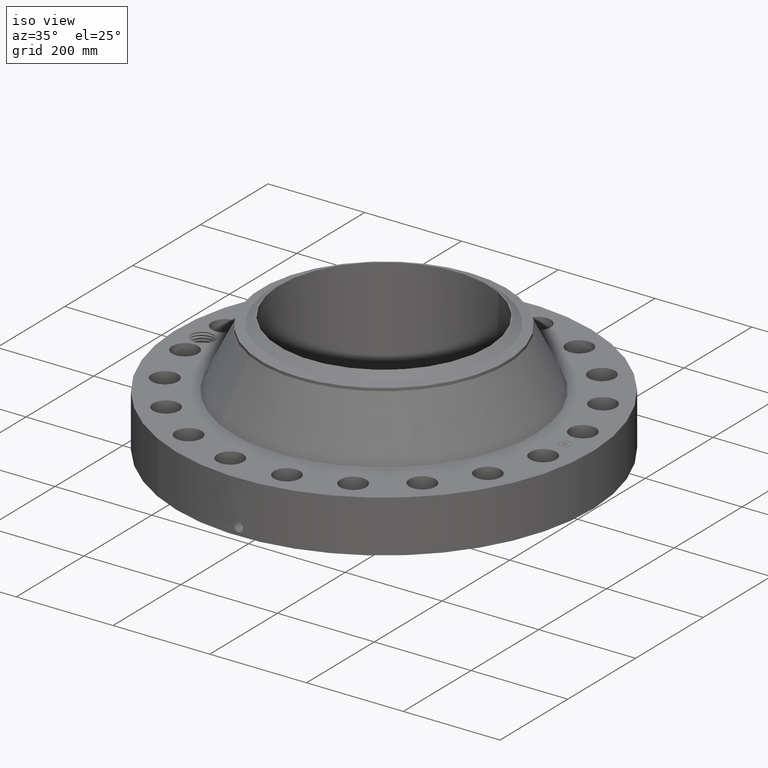
[diagram: clean part render]
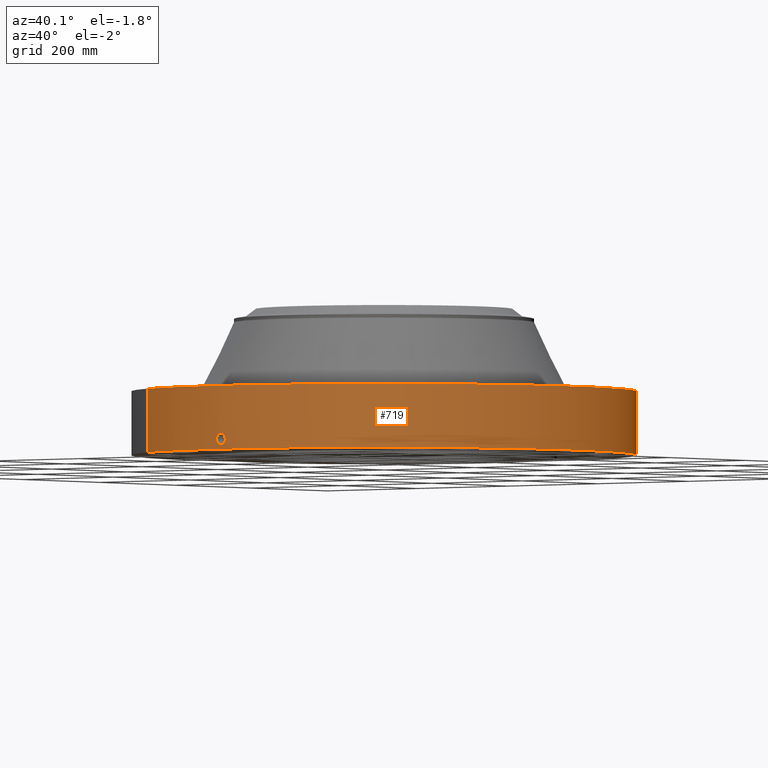
[diagram: tour spotlight — one face highlighted and labeled with its STEP entity id]
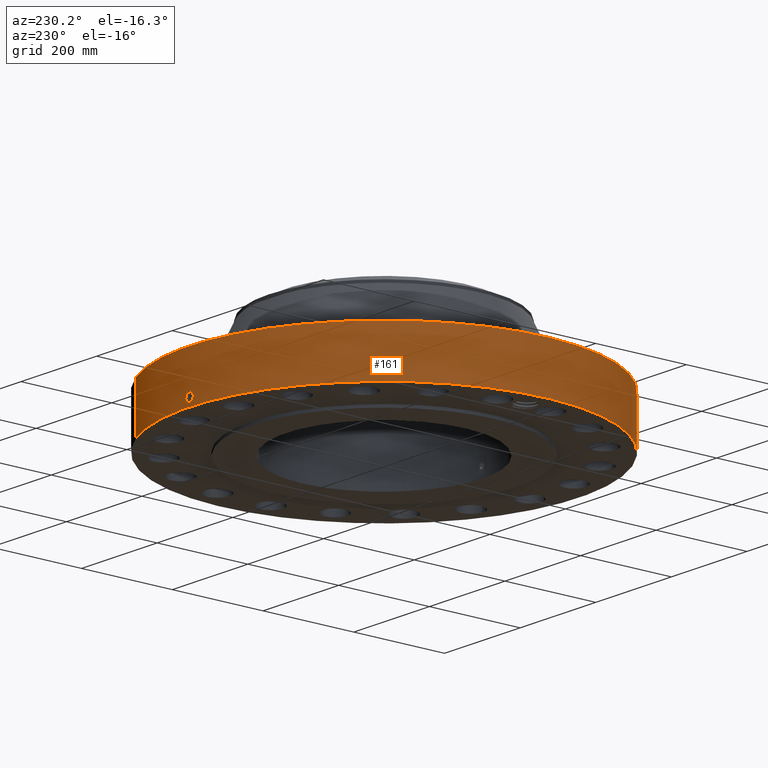
[diagram: tour spotlight — one face highlighted and labeled with its STEP entity id]
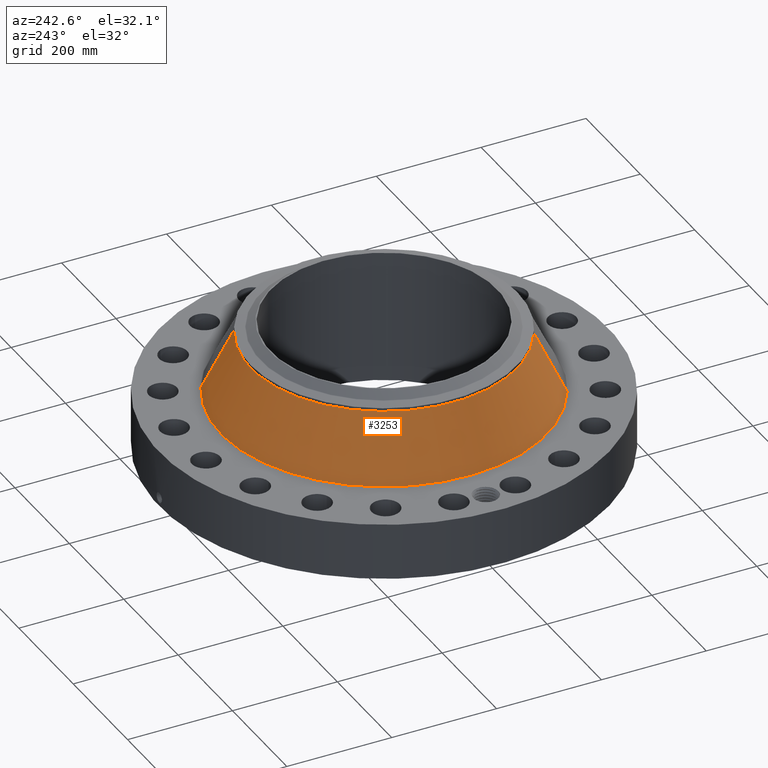
[diagram: tour spotlight — one face highlighted and labeled with its STEP entity id]
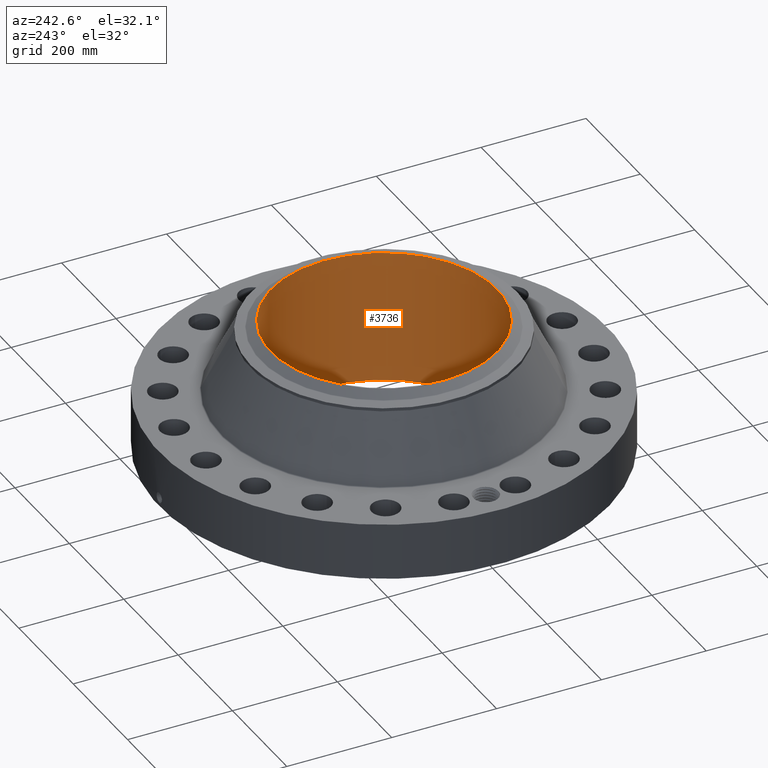
[diagram: tour spotlight — one face highlighted and labeled with its STEP entity id]
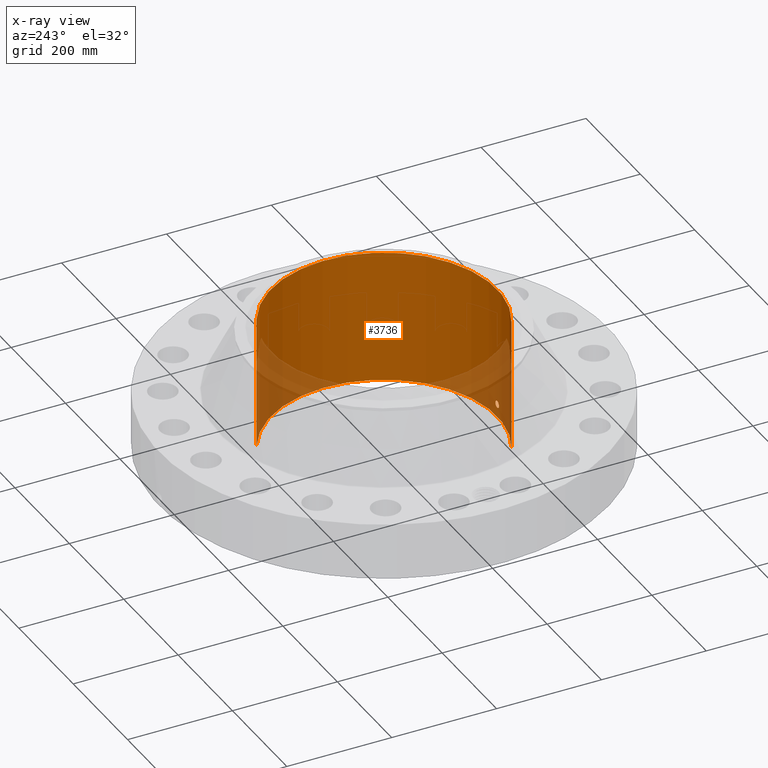
[diagram: x-ray of the same camera — body ghosted, this tour face saturated]
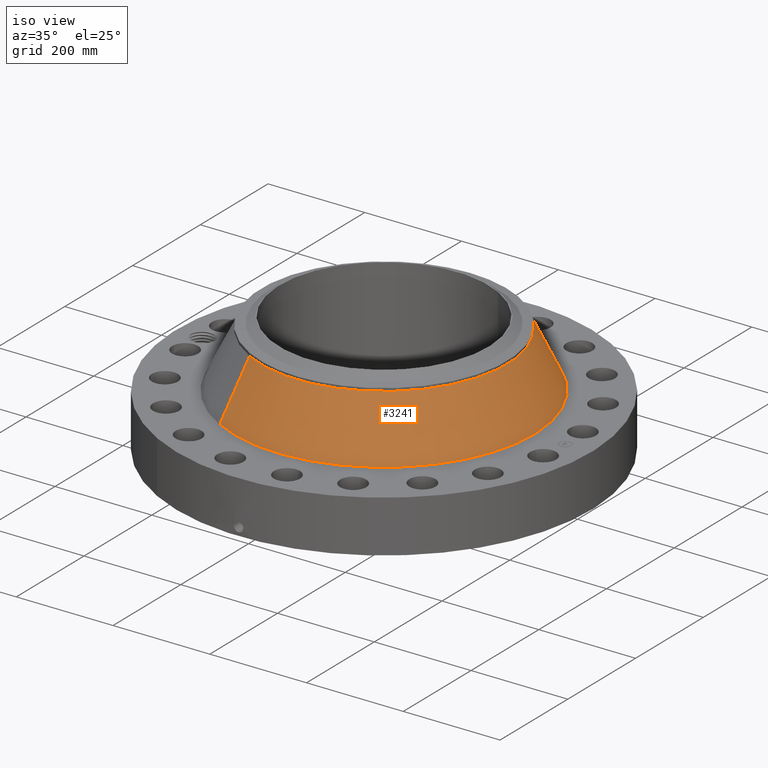
[diagram: tour spotlight — one face highlighted and labeled with its STEP entity id]
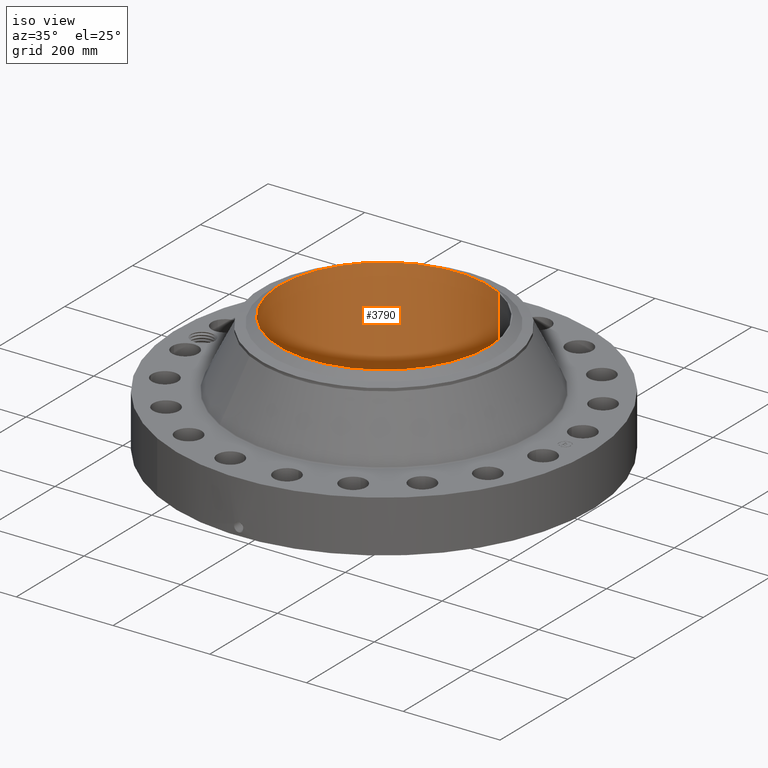
[diagram: tour spotlight — one face highlighted and labeled with its STEP entity id]
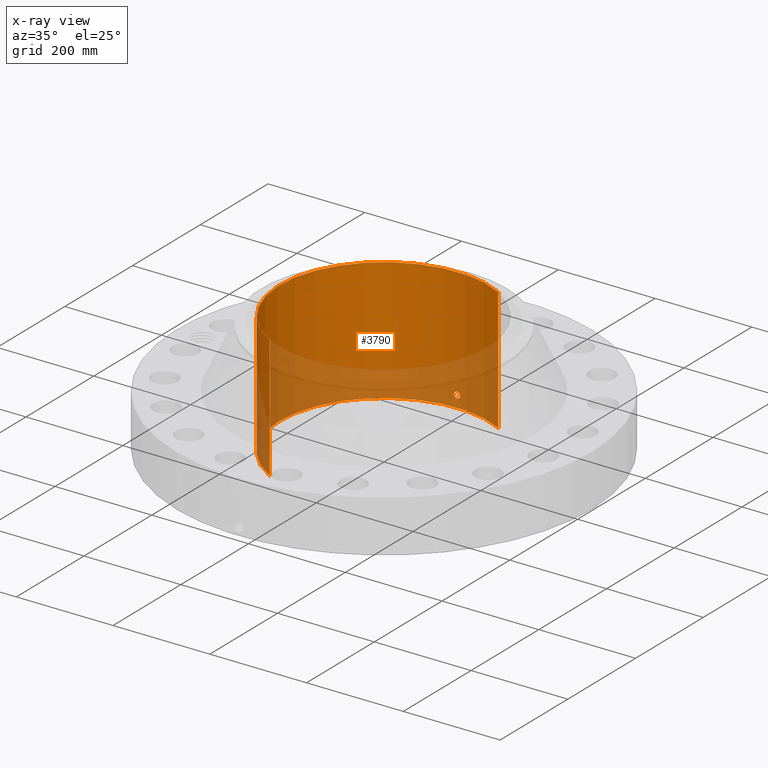
[diagram: x-ray of the same camera — body ghosted, this tour face saturated]
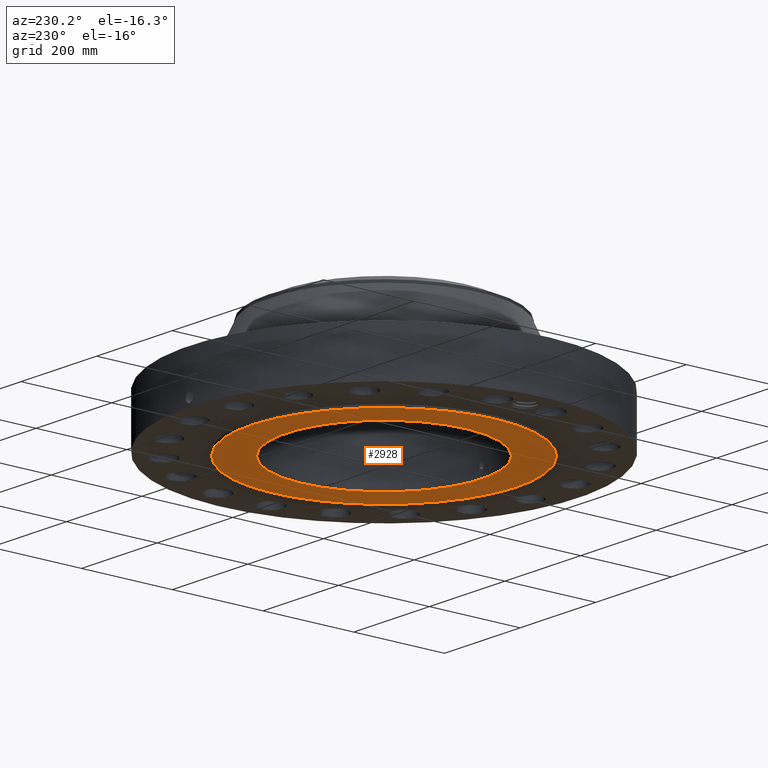
[diagram: tour spotlight — one face highlighted and labeled with its STEP entity id]
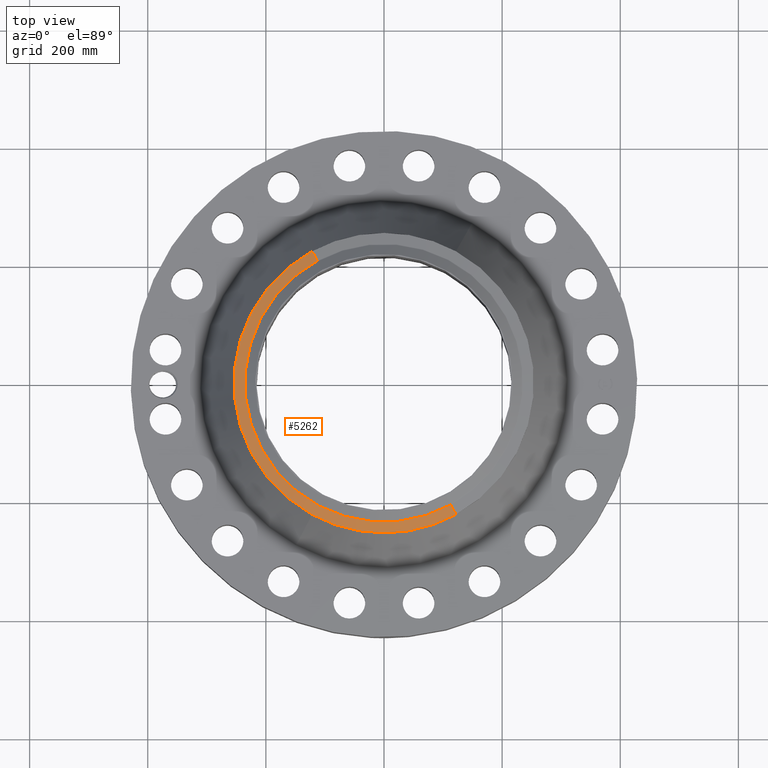
[diagram: tour spotlight — one face highlighted and labeled with its STEP entity id]
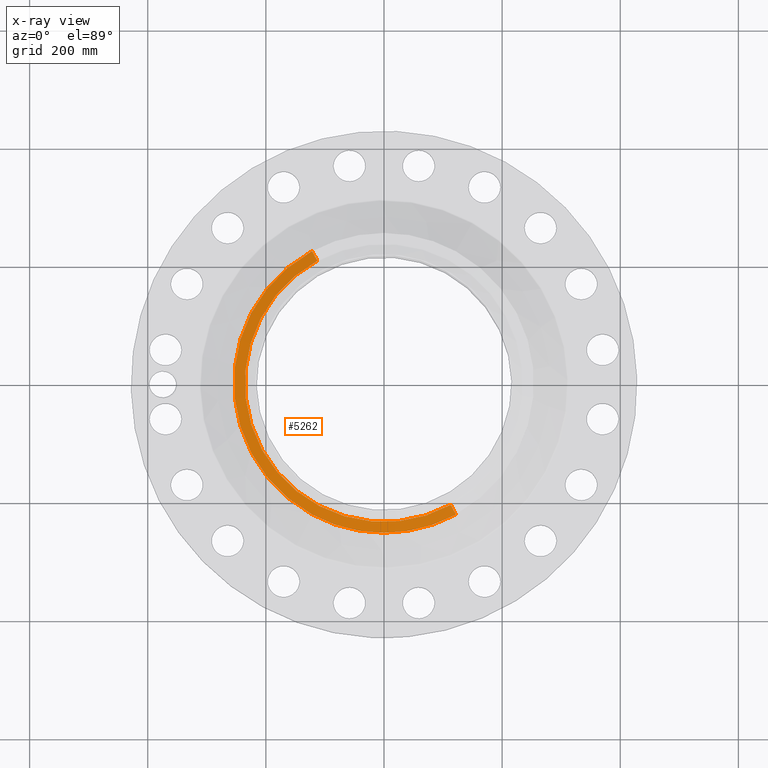
[diagram: x-ray of the same camera — body ghosted, this tour face saturated]
A machine part: a face-by-face anatomy tour. The part has 822 B-rep faces; the first image is the clean iso view, then the 8 largest visible faces are spotlighted one at a time (largest first), each with its STEP entity span.

Face 1 — auxiliary view, entity #719. In plain terms, the highlighted cylindrical surface (partial cylindrical patch) has radius 428.625 mm, axis along (0, 0, -1).
Definition (entity closure, byte-faithful):
#38=AXIS2_PLACEMENT_3D('Cylinder Axis2P3D',#35,#36,#37) ;
#169=AXIS2_PLACEMENT_3D('Circle Axis2P3D',#167,#168,$) ;
#623=AXIS2_PLACEMENT_3D('Circle Axis2P3D',#621,#622,$) ;
#35=CARTESIAN_POINT('Axis2P3D Location',(0.,0.,5.00000000002)) ;
#44=CARTESIAN_POINT('Vertex',(-8.09030596398,-14.809205732,0.250000000001)) ;
#46=CARTESIAN_POINT('Vertex',(8.09030596398,14.809205732,0.250000000001)) ;
#49=CARTESIAN_POINT('Line Origine',(-8.09030596398,-14.809205732,2.37500000001)) ;
#53=CARTESIAN_POINT('Vertex',(-8.09030596398,-14.809205732,4.50000000002)) ;
#60=CARTESIAN_POINT('Vertex',(8.09030596398,14.809205732,4.50000000002)) ;
#63=CARTESIAN_POINT('Line Origine',(8.09030596398,14.809205732,2.37500000001)) ;
#167=CARTESIAN_POINT('Axis2P3D Location',(0.,0.,0.250000000001)) ;
#621=CARTESIAN_POINT('Axis2P3D Location',(0.,0.,4.50000000002)) ;
#633=CARTESIAN_POINT('Control Point',(0.000715966344734,-16.8749999849,1.29411846151)) ;
#634=CARTESIAN_POINT('Control Point',(0.0188587449809,-16.8749992151,1.29408182617)) ;
#635=CARTESIAN_POINT('Control Point',(0.0369983738358,-16.8749689585,1.29264716763)) ;
#636=CARTESIAN_POINT('Control Point',(0.05492114816,-16.874910627,1.28983155179)) ;
#637=CARTESIAN_POINT('Vertex',(0.000715647544347,-16.8749999849,1.29411851071)) ;
#639=CARTESIAN_POINT('Vertex',(0.0549124867546,-16.8749109068,1.28983293024)) ;
#643=CARTESIAN_POINT('Control Point',(0.0549123924265,-16.8749106555,1.28983238615)) ;
#644=CARTESIAN_POINT('Control Point',(0.0954921253259,-16.8747786056,1.28546586304)) ;
#645=CARTESIAN_POINT('Control Point',(0.13544862936,-16.8744965787,1.27372463291)) ;
#646=CARTESIAN_POINT('Control Point',(0.172272160945,-16.874120638,1.25537261567)) ;
#647=CARTESIAN_POINT('Vertex',(0.172272160945,-16.874120638,1.25537261567)) ;
#651=CARTESIAN_POINT('Control Point',(0.0311176967246,-16.8749713093,0.531196981948)) ;
#652=CARTESIAN_POINT('Control Point',(0.0716971627791,-16.8748964802,0.536329675343)) ;
#653=CARTESIAN_POINT('Control Point',(0.111483887484,-16.874701135,0.54671774293)) ;
#654=CARTESIAN_POINT('Control Point',(0.149542289915,-16.8743962607,0.562204334612)) ;
#655=CARTESIAN_POINT('Control Point',(0.239358933903,-16.8734348165,0.613172299083)) ;
#656=CARTESIAN_POINT('Control Point',(0.308457455016,-16.8722463849,0.690007880862)) ;
#657=CARTESIAN_POINT('Control Point',(0.340329822593,-16.8715879855,0.743761261478)) ;
#658=CARTESIAN_POINT('Control Point',(0.374944138443,-16.8708389442,0.84107339288)) ;
#659=CARTESIAN_POINT('Control Point',(0.377318743414,-16.8707797936,0.94236708006)) ;
#660=CARTESIAN_POINT('Control Point',(0.372953924711,-16.870879792,0.98292589785)) ;
#661=CARTESIAN_POINT('Control Point',(0.350404708112,-16.871382695,1.07569920784)) ;
#662=CARTESIAN_POINT('Control Point',(0.30066942533,-16.8723616565,1.1572585094)) ;
#663=CARTESIAN_POINT('Control Point',(0.263812673078,-16.8730156963,1.19834070166)) ;
#664=CARTESIAN_POINT('Control Point',(0.220228293546,-16.8736310417,1.2314723578)) ;
#665=CARTESIAN_POINT('Control Point',(0.172272160945,-16.874120638,1.25537261567)) ;
#666=CARTESIAN_POINT('Vertex',(0.0311176967246,-16.8749713093,0.531196981948)) ;
#670=CARTESIAN_POINT('Control Point',(0.0311176967246,-16.8749713093,0.531196981948)) ;
#671=CARTESIAN_POINT('Control Point',(0.0207404090337,-16.8749904452,0.530875685859)) ;
#672=CARTESIAN_POINT('Control Point',(0.0103551827877,-16.8750000017,0.530935093628)) ;
#673=CARTESIAN_POINT('Control Point',(-2.72878355396E-006,-16.8750000001,0.531374667806)) ;
#674=CARTESIAN_POINT('Vertex',(-2.72878354464E-006,-16.8750000001,0.531374667806)) ;
#678=CARTESIAN_POINT('Control Point',(-0.19254051346,-16.8739015392,0.587568175017)) ;
#679=CARTESIAN_POINT('Control Point',(-0.148973082246,-16.8743986675,0.562131731085)) ;
#680=CARTESIAN_POINT('Control Point',(-0.101110473954,-16.8747954933,0.543811579036)) ;
#681=CARTESIAN_POINT('Control Point',(-0.0508033336652,-16.8749999919,0.533530568522)) ;
#682=CARTESIAN_POINT('Control Point',(-2.72878353899E-006,-16.8750000001,0.531374667806)) ;
#683=CARTESIAN_POINT('Vertex',(-0.19254051346,-16.8739015392,0.587568175017)) ;
#687=CARTESIAN_POINT('Control Point',(-0.19254051346,-16.8739015392,0.587568175017)) ;
#688=CARTESIAN_POINT('Control Point',(-0.249309488484,-16.8732537739,0.620712216513)) ;
#689=CARTESIAN_POINT('Control Point',(-0.299262722811,-16.8724450136,0.665183203547)) ;
#690=CARTESIAN_POINT('Control Point',(-0.339248745105,-16.8716253423,0.719381497617)) ;
#691=CARTESIAN_POINT('Control Point',(-0.383251893684,-16.8706561064,0.817654652847)) ;
#692=CARTESIAN_POINT('Control Point',(-0.391654931475,-16.8704531723,0.922932639443)) ;
#693=CARTESIAN_POINT('Control Point',(-0.389478215844,-16.8705050932,0.963131365176)) ;
#694=CARTESIAN_POINT('Control Point',(-0.369875477447,-16.8709644816,1.06613732671)) ;
#695=CARTESIAN_POINT('Control Point',(-0.316342964938,-16.8720886068,1.15688810358)) ;
#696=CARTESIAN_POINT('Control Point',(-0.271808790895,-16.8729258459,1.20451035201)) ;
#697=CARTESIAN_POINT('Control Point',(-0.190945061607,-16.8740756541,1.2605704716)) ;
#698=CARTESIAN_POINT('Control Point',(-0.0989266654643,-16.8747569291,1.28784304808)) ;
#699=CARTESIAN_POINT('Control Point',(-0.0660321748011,-16.8749199747,1.29367514867)) ;
#700=CARTESIAN_POINT('Control Point',(-0.032863472461,-16.8750000504,1.29576551169)) ;
#701=CARTESIAN_POINT('Control Point',(2.5857935553E-005,-16.875,1.2941529843)) ;
#702=CARTESIAN_POINT('Vertex',(2.5857935547E-005,-16.875,1.2941529843)) ;
#706=CARTESIAN_POINT('Control Point',(0.000715647534811,-16.8749999849,1.29411851069)) ;
#707=CARTESIAN_POINT('Control Point',(0.000370777338324,-16.8749999995,1.29413607331)) ;
#708=CARTESIAN_POINT('Control Point',(2.58579404891E-005,-16.875,1.29415298429)) ;
#36=DIRECTION('Axis2P3D Direction',(0.,0.,-0.0393700787402)) ;
#37=DIRECTION('Axis2P3D XDirection',(0.0188750212049,0.0345504945626,0.)) ;
#50=DIRECTION('Vector Direction',(0.,0.,-0.0393700787402)) ;
#64=DIRECTION('Vector Direction',(0.,0.,-0.0393700787402)) ;
#168=DIRECTION('Axis2P3D Direction',(0.,0.,-0.0393700787402)) ;
#622=DIRECTION('Axis2P3D Direction',(0.,0.,-0.0393700787402)) ;
#51=VECTOR('Line Direction',#50,0.0393700787402) ;
#65=VECTOR('Line Direction',#64,0.0393700787402) ;
#627=ORIENTED_EDGE('',*,*,#171,.F.) ;
#628=ORIENTED_EDGE('',*,*,#67,.T.) ;
#629=ORIENTED_EDGE('',*,*,#625,.T.) ;
#630=ORIENTED_EDGE('',*,*,#55,.F.) ;
#711=ORIENTED_EDGE('',*,*,#641,.T.) ;
#712=ORIENTED_EDGE('',*,*,#649,.T.) ;
#713=ORIENTED_EDGE('',*,*,#668,.F.) ;
#714=ORIENTED_EDGE('',*,*,#676,.T.) ;
#715=ORIENTED_EDGE('',*,*,#685,.F.) ;
#716=ORIENTED_EDGE('',*,*,#704,.T.) ;
#717=ORIENTED_EDGE('',*,*,#709,.F.) ;
#718=FACE_BOUND('',#710,.T.) ;
#719=ADVANCED_FACE('PartBody',(#631,#718),#39,.T.) ;
#632=B_SPLINE_CURVE_WITH_KNOTS('',3,(#633,#634,#635,#636),.UNSPECIFIED.,.F.,.U.,(4,4),(34.6167109194,36.6294797197),.UNSPECIFIED.) ;
#642=B_SPLINE_CURVE_WITH_KNOTS('',3,(#643,#644,#645,#646),.UNSPECIFIED.,.F.,.U.,(4,4),(0.,4.58603305915),.UNSPECIFIED.) ;
#650=B_SPLINE_CURVE_WITH_KNOTS('',5,(#651,#652,#653,#654,#655,#656,#657,#658,#659,#660,#661,#662,#663,#664,#665),.UNSPECIFIED.,.F.,.U.,(6,3,3,3,6),(0.,7.10840571919,17.9965871419,25.3424692093,35.2966301383),.UNSPECIFIED.) ;
#669=B_SPLINE_CURVE_WITH_KNOTS('',3,(#670,#671,#672,#673),.UNSPECIFIED.,.F.,.U.,(4,4),(0.,1.08252290649),.UNSPECIFIED.) ;
#677=B_SPLINE_CURVE_WITH_KNOTS('',4,(#678,#679,#680,#681,#682),.UNSPECIFIED.,.F.,.U.,(5,5),(0.,7.07900983512),.UNSPECIFIED.) ;
#686=B_SPLINE_CURVE_WITH_KNOTS('',5,(#687,#688,#689,#690,#691,#692,#693,#694,#695,#696,#697,#698,#699,#700,#701),.UNSPECIFIED.,.F.,.U.,(6,3,3,3,6),(0.,11.5300613839,18.6226471184,30.1177973124,36.2654958876),.UNSPECIFIED.) ;
#705=B_SPLINE_CURVE_WITH_KNOTS('',2,(#706,#707,#708),.UNSPECIFIED.,.F.,.U.,(3,3),(1.01879612386,1.04458516299),.UNSPECIFIED.) ;
#170=CIRCLE('generated circle',#169,16.8750000001) ;
#624=CIRCLE('generated circle',#623,16.8750000001) ;
#39=CYLINDRICAL_SURFACE('generated cylinder',#38,16.8750000001) ;
#55=EDGE_CURVE('',#45,#54,#52,.F.) ;
#67=EDGE_CURVE('',#47,#61,#66,.F.) ;
#171=EDGE_CURVE('',#47,#45,#170,.T.) ;
#625=EDGE_CURVE('',#61,#54,#624,.T.) ;
#641=EDGE_CURVE('',#638,#640,#632,.T.) ;
#649=EDGE_CURVE('',#640,#648,#642,.T.) ;
#668=EDGE_CURVE('',#667,#648,#650,.T.) ;
#676=EDGE_CURVE('',#667,#675,#669,.T.) ;
#685=EDGE_CURVE('',#684,#675,#677,.T.) ;
#704=EDGE_CURVE('',#684,#703,#686,.T.) ;
#709=EDGE_CURVE('',#638,#703,#705,.T.) ;
#626=EDGE_LOOP('',(#627,#628,#629,#630)) ;
#710=EDGE_LOOP('',(#711,#712,#713,#714,#715,#716,#717)) ;
#631=FACE_OUTER_BOUND('',#626,.T.) ;
#52=LINE('Line',#49,#51) ;
#66=LINE('Line',#63,#65) ;
#45=VERTEX_POINT('',#44) ;
#47=VERTEX_POINT('',#46) ;
#54=VERTEX_POINT('',#53) ;
#61=VERTEX_POINT('',#60) ;
#638=VERTEX_POINT('',#637) ;
#640=VERTEX_POINT('',#639) ;
#648=VERTEX_POINT('',#647) ;
#667=VERTEX_POINT('',#666) ;
#675=VERTEX_POINT('',#674) ;
#684=VERTEX_POINT('',#683) ;
#703=VERTEX_POINT('',#702) ;

Face 2 — auxiliary view, entity #161. In plain terms, the highlighted cylindrical surface (partial cylindrical patch) has radius 428.625 mm, axis along (0, 0, -1).
Definition (entity closure, byte-faithful):
#38=AXIS2_PLACEMENT_3D('Cylinder Axis2P3D',#35,#36,#37) ;
#42=AXIS2_PLACEMENT_3D('Circle Axis2P3D',#40,#41,$) ;
#58=AXIS2_PLACEMENT_3D('Circle Axis2P3D',#56,#57,$) ;
#35=CARTESIAN_POINT('Axis2P3D Location',(0.,0.,5.00000000002)) ;
#40=CARTESIAN_POINT('Axis2P3D Location',(0.,0.,0.250000000001)) ;
#44=CARTESIAN_POINT('Vertex',(-8.09030596398,-14.809205732,0.250000000001)) ;
#46=CARTESIAN_POINT('Vertex',(8.09030596398,14.809205732,0.250000000001)) ;
#49=CARTESIAN_POINT('Line Origine',(-8.09030596398,-14.809205732,2.37500000001)) ;
#53=CARTESIAN_POINT('Vertex',(-8.09030596398,-14.809205732,4.50000000002)) ;
#56=CARTESIAN_POINT('Axis2P3D Location',(0.,0.,4.50000000002)) ;
#60=CARTESIAN_POINT('Vertex',(8.09030596398,14.809205732,4.50000000002)) ;
#63=CARTESIAN_POINT('Line Origine',(8.09030596398,14.809205732,2.37500000001)) ;
#75=CARTESIAN_POINT('Control Point',(-0.000715966344916,16.8749999849,1.29411846151)) ;
#76=CARTESIAN_POINT('Control Point',(-0.0188587449822,16.8749992151,1.29408182617)) ;
#77=CARTESIAN_POINT('Control Point',(-0.0369983738336,16.8749689585,1.29264716763)) ;
#78=CARTESIAN_POINT('Control Point',(-0.0549211481594,16.874910627,1.28983155179)) ;
#79=CARTESIAN_POINT('Vertex',(-0.000715647544343,16.8749999849,1.29411851071)) ;
#81=CARTESIAN_POINT('Vertex',(-0.0549124867546,16.8749109068,1.28983293024)) ;
#85=CARTESIAN_POINT('Control Point',(-0.0549123924265,16.8749106555,1.28983238615)) ;
#86=CARTESIAN_POINT('Control Point',(-0.0954921253296,16.8747786056,1.28546586304)) ;
#87=CARTESIAN_POINT('Control Point',(-0.135448629357,16.8744965787,1.27372463291)) ;
#88=CARTESIAN_POINT('Control Point',(-0.172272160945,16.874120638,1.25537261567)) ;
#89=CARTESIAN_POINT('Vertex',(-0.172272160945,16.874120638,1.25537261567)) ;
#93=CARTESIAN_POINT('Control Point',(-0.0311176967246,16.8749713093,0.531196981948)) ;
#94=CARTESIAN_POINT('Control Point',(-0.0716971628168,16.8748964802,0.536329675348)) ;
#95=CARTESIAN_POINT('Control Point',(-0.111483887558,16.874701135,0.54671774295)) ;
#96=CARTESIAN_POINT('Control Point',(-0.149542289849,16.8743962607,0.562204334575)) ;
#97=CARTESIAN_POINT('Control Point',(-0.239358933803,16.8734348165,0.613172299012)) ;
#98=CARTESIAN_POINT('Control Point',(-0.308457454901,16.8722463849,0.690007880735)) ;
#99=CARTESIAN_POINT('Control Point',(-0.340329822649,16.8715879855,0.743761261637)) ;
#100=CARTESIAN_POINT('Control Point',(-0.374944138481,16.8708389442,0.841073393062)) ;
#101=CARTESIAN_POINT('Control Point',(-0.377318743419,16.8707797936,0.942367080266)) ;
#102=CARTESIAN_POINT('Control Point',(-0.372953924759,16.870879792,0.982925897651)) ;
#103=CARTESIAN_POINT('Control Point',(-0.35040470816,16.871382695,1.07569920777)) ;
#104=CARTESIAN_POINT('Control Point',(-0.300669425306,16.8723616565,1.15725850944)) ;
#105=CARTESIAN_POINT('Control Point',(-0.263812673113,16.8730156963,1.19834070163)) ;
#106=CARTESIAN_POINT('Control Point',(-0.220228293565,16.8736310417,1.23147235779)) ;
#107=CARTESIAN_POINT('Control Point',(-0.172272160945,16.874120638,1.25537261567)) ;
#108=CARTESIAN_POINT('Vertex',(-0.0311176967246,16.8749713093,0.531196981948)) ;
#112=CARTESIAN_POINT('Control Point',(-0.0311176967246,16.8749713093,0.531196981948)) ;
#113=CARTESIAN_POINT('Control Point',(-0.0207404090337,16.8749904452,0.530875685859)) ;
#114=CARTESIAN_POINT('Control Point',(-0.0103551827877,16.8750000017,0.530935093628)) ;
#115=CARTESIAN_POINT('Control Point',(2.72878355189E-006,16.8750000001,0.531374667806)) ;
#116=CARTESIAN_POINT('Vertex',(2.72878354257E-006,16.8750000001,0.531374667806)) ;
#120=CARTESIAN_POINT('Control Point',(0.19254051346,16.8739015392,0.587568175017)) ;
#121=CARTESIAN_POINT('Control Point',(0.148973082226,16.8743986675,0.562131731073)) ;
#122=CARTESIAN_POINT('Control Point',(0.101110473963,16.8747954933,0.543811579035)) ;
#123=CARTESIAN_POINT('Control Point',(0.0508033336893,16.8749999919,0.533530568523)) ;
#124=CARTESIAN_POINT('Control Point',(2.72878355189E-006,16.8750000001,0.531374667806)) ;
#125=CARTESIAN_POINT('Vertex',(0.19254051346,16.8739015392,0.587568175017)) ;
#129=CARTESIAN_POINT('Control Point',(0.19254051346,16.8739015392,0.587568175017)) ;
#130=CARTESIAN_POINT('Control Point',(0.249309488416,16.8732537739,0.620712216474)) ;
#131=CARTESIAN_POINT('Control Point',(0.299262722692,16.8724450136,0.665183203441)) ;
#132=CARTESIAN_POINT('Control Point',(0.339248744828,16.8716253423,0.719381497205)) ;
#133=CARTESIAN_POINT('Control Point',(0.383251893495,16.8706561065,0.817654652256)) ;
#134=CARTESIAN_POINT('Control Point',(0.391654931468,16.8704531723,0.922932638718)) ;
#135=CARTESIAN_POINT('Control Point',(0.389478215896,16.8705050932,0.963131364629)) ;
#136=CARTESIAN_POINT('Control Point',(0.369875477658,16.8709644816,1.0661373262)) ;
#137=CARTESIAN_POINT('Control Point',(0.316342965287,16.8720886067,1.15688810315)) ;
#138=CARTESIAN_POINT('Control Point',(0.271808791441,16.8729258459,1.20451035153)) ;
#139=CARTESIAN_POINT('Control Point',(0.190945062109,16.874075654,1.26057047137)) ;
#140=CARTESIAN_POINT('Control Point',(0.0989266658309,16.8747569291,1.28784304801)) ;
#141=CARTESIAN_POINT('Control Point',(0.0660321750528,16.8749199747,1.29367514866)) ;
#142=CARTESIAN_POINT('Control Point',(0.0328634725859,16.8750000504,1.2957655117)) ;
#143=CARTESIAN_POINT('Control Point',(-2.58579355701E-005,16.875,1.2941529843)) ;
#144=CARTESIAN_POINT('Vertex',(-2.58579355491E-005,16.875,1.2941529843)) ;
#148=CARTESIAN_POINT('Control Point',(-0.000715647534762,16.8749999849,1.29411851069)) ;
#149=CARTESIAN_POINT('Control Point',(-0.000370777338297,16.8749999995,1.29413607331)) ;
#150=CARTESIAN_POINT('Control Point',(-2.58579404822E-005,16.875,1.29415298429)) ;
#36=DIRECTION('Axis2P3D Direction',(0.,0.,-0.0393700787402)) ;
#37=DIRECTION('Axis2P3D XDirection',(0.0188750212049,0.0345504945626,0.)) ;
#41=DIRECTION('Axis2P3D Direction',(0.,0.,-0.0393700787402)) ;
#50=DIRECTION('Vector Direction',(0.,0.,-0.0393700787402)) ;
#57=DIRECTION('Axis2P3D Direction',(0.,0.,-0.0393700787402)) ;
#64=DIRECTION('Vector Direction',(0.,0.,-0.0393700787402)) ;
#51=VECTOR('Line Direction',#50,0.0393700787402) ;
#65=VECTOR('Line Direction',#64,0.0393700787402) ;
#69=ORIENTED_EDGE('',*,*,#48,.F.) ;
#70=ORIENTED_EDGE('',*,*,#55,.T.) ;
#71=ORIENTED_EDGE('',*,*,#62,.T.) ;
#72=ORIENTED_EDGE('',*,*,#67,.F.) ;
#153=ORIENTED_EDGE('',*,*,#83,.T.) ;
#154=ORIENTED_EDGE('',*,*,#91,.T.) ;
#155=ORIENTED_EDGE('',*,*,#110,.F.) ;
#156=ORIENTED_EDGE('',*,*,#118,.T.) ;
#157=ORIENTED_EDGE('',*,*,#127,.F.) ;
#158=ORIENTED_EDGE('',*,*,#146,.T.) ;
#159=ORIENTED_EDGE('',*,*,#151,.F.) ;
#160=FACE_BOUND('',#152,.T.) ;
#161=ADVANCED_FACE('PartBody',(#73,#160),#39,.T.) ;
#74=B_SPLINE_CURVE_WITH_KNOTS('',3,(#75,#76,#77,#78),.UNSPECIFIED.,.F.,.U.,(4,4),(34.6167109237,36.6294797239),.UNSPECIFIED.) ;
#84=B_SPLINE_CURVE_WITH_KNOTS('',3,(#85,#86,#87,#88),.UNSPECIFIED.,.F.,.U.,(4,4),(0.,4.58603305958),.UNSPECIFIED.) ;
#92=B_SPLINE_CURVE_WITH_KNOTS('',5,(#93,#94,#95,#96,#97,#98,#99,#100,#101,#102,#103,#104,#105,#106,#107),.UNSPECIFIED.,.F.,.U.,(6,3,3,3,6),(0.,7.10840572578,17.9965871336,25.3424692195,35.2966301526),.UNSPECIFIED.) ;
#111=B_SPLINE_CURVE_WITH_KNOTS('',3,(#112,#113,#114,#115),.UNSPECIFIED.,.F.,.U.,(4,4),(0.,1.08252290649),.UNSPECIFIED.) ;
#119=B_SPLINE_CURVE_WITH_KNOTS('',4,(#120,#121,#122,#123,#124),.UNSPECIFIED.,.F.,.U.,(5,5),(0.,7.07900983847),.UNSPECIFIED.) ;
#128=B_SPLINE_CURVE_WITH_KNOTS('',5,(#129,#130,#131,#132,#133,#134,#135,#136,#137,#138,#139,#140,#141,#142,#143),.UNSPECIFIED.,.F.,.U.,(6,3,3,3,6),(0.,11.5300613702,18.6226470971,30.1177972985,36.2654958971),.UNSPECIFIED.) ;
#147=B_SPLINE_CURVE_WITH_KNOTS('',2,(#148,#149,#150),.UNSPECIFIED.,.F.,.U.,(3,3),(1.01879612386,1.04458516299),.UNSPECIFIED.) ;
#43=CIRCLE('generated circle',#42,16.8750000001) ;
#59=CIRCLE('generated circle',#58,16.8750000001) ;
#39=CYLINDRICAL_SURFACE('generated cylinder',#38,16.8750000001) ;
#48=EDGE_CURVE('',#45,#47,#43,.T.) ;
#55=EDGE_CURVE('',#45,#54,#52,.F.) ;
#62=EDGE_CURVE('',#54,#61,#59,.T.) ;
#67=EDGE_CURVE('',#47,#61,#66,.F.) ;
#83=EDGE_CURVE('',#80,#82,#74,.T.) ;
#91=EDGE_CURVE('',#82,#90,#84,.T.) ;
#110=EDGE_CURVE('',#109,#90,#92,.T.) ;
#118=EDGE_CURVE('',#109,#117,#111,.T.) ;
#127=EDGE_CURVE('',#126,#117,#119,.T.) ;
#146=EDGE_CURVE('',#126,#145,#128,.T.) ;
#151=EDGE_CURVE('',#80,#145,#147,.T.) ;
#68=EDGE_LOOP('',(#69,#70,#71,#72)) ;
#152=EDGE_LOOP('',(#153,#154,#155,#156,#157,#158,#159)) ;
#73=FACE_OUTER_BOUND('',#68,.T.) ;
#52=LINE('Line',#49,#51) ;
#66=LINE('Line',#63,#65) ;
#45=VERTEX_POINT('',#44) ;
#47=VERTEX_POINT('',#46) ;
#54=VERTEX_POINT('',#53) ;
#61=VERTEX_POINT('',#60) ;
#80=VERTEX_POINT('',#79) ;
#82=VERTEX_POINT('',#81) ;
#90=VERTEX_POINT('',#89) ;
#109=VERTEX_POINT('',#108) ;
#117=VERTEX_POINT('',#116) ;
#126=VERTEX_POINT('',#125) ;
#145=VERTEX_POINT('',#144) ;

Face 3 — auxiliary view, entity #3253. In plain terms, the highlighted conical surface has half-angle 25.978 deg.
Definition (entity closure, byte-faithful):
#2557=AXIS2_PLACEMENT_3D('Circle Axis2P3D',#2555,#2556,$) ;
#3214=AXIS2_PLACEMENT_3D('Cone Axis2P3D',#3211,#3212,#3213) ;
#3244=AXIS2_PLACEMENT_3D('Circle Axis2P3D',#3242,#3243,$) ;
#2533=CARTESIAN_POINT('Vertex',(5.85720927136,10.7215496547,4.56743631846)) ;
#2540=CARTESIAN_POINT('Vertex',(-5.85720927136,-10.7215496547,4.56743631846)) ;
#2555=CARTESIAN_POINT('Axis2P3D Location',(0.,0.,4.56743631846)) ;
#3211=CARTESIAN_POINT('Axis2P3D Location',(0.,0.,9.1176218848)) ;
#3216=CARTESIAN_POINT('Line Origine',(5.32573232871,9.74868763683,6.84252910163)) ;
#3220=CARTESIAN_POINT('Vertex',(4.79425538606,8.77582561894,9.1176218848)) ;
#3227=CARTESIAN_POINT('Vertex',(-4.79425538606,-8.77582561894,9.1176218848)) ;
#3230=CARTESIAN_POINT('Line Origine',(-5.32573232871,-9.74868763683,6.84252910163)) ;
#3242=CARTESIAN_POINT('Axis2P3D Location',(0.,0.,9.1176218848)) ;
#2556=DIRECTION('Axis2P3D Direction',(0.,0.,-0.0393700787402)) ;
#3212=DIRECTION('Axis2P3D Direction',(0.,0.,-0.0393700787402)) ;
#3213=DIRECTION('Axis2P3D XDirection',(-0.0188750212049,-0.0345504945626,0.)) ;
#3217=DIRECTION('Vector Direction',(0.00826783836718,0.0151341766162,-0.0353921269054)) ;
#3231=DIRECTION('Vector Direction',(-0.00826783836718,-0.0151341766162,-0.0353921269054)) ;
#3243=DIRECTION('Axis2P3D Direction',(0.,0.,-0.0393700787402)) ;
#3218=VECTOR('Line Direction',#3217,0.0393700787402) ;
#3232=VECTOR('Line Direction',#3231,0.0393700787402) ;
#3248=ORIENTED_EDGE('',*,*,#2559,.F.) ;
#3249=ORIENTED_EDGE('',*,*,#3234,.T.) ;
#3250=ORIENTED_EDGE('',*,*,#3246,.T.) ;
#3251=ORIENTED_EDGE('',*,*,#3222,.F.) ;
#3253=ADVANCED_FACE('PartBody',(#3252),#3215,.T.) ;
#2558=CIRCLE('generated circle',#2557,12.2171407231) ;
#3245=CIRCLE('generated circle',#3244,10.) ;
#3215=CONICAL_SURFACE('Cone',#3214,10.,0.45340683612) ;
#2559=EDGE_CURVE('',#2541,#2534,#2558,.T.) ;
#3222=EDGE_CURVE('',#2534,#3221,#3219,.F.) ;
#3234=EDGE_CURVE('',#2541,#3228,#3233,.F.) ;
#3246=EDGE_CURVE('',#3228,#3221,#3245,.T.) ;
#3247=EDGE_LOOP('',(#3248,#3249,#3250,#3251)) ;
#3252=FACE_OUTER_BOUND('',#3247,.T.) ;
#3219=LINE('Line',#3216,#3218) ;
#3233=LINE('Line',#3230,#3232) ;
#2534=VERTEX_POINT('',#2533) ;
#2541=VERTEX_POINT('',#2540) ;
#3221=VERTEX_POINT('',#3220) ;
#3228=VERTEX_POINT('',#3227) ;

Face 4 — auxiliary view, entity #3736. An x-ray twin of the same camera follows (body ghosted, this face saturated) — the face is partly hidden behind the body. In plain terms, the highlighted cylindrical surface (partial cylindrical patch) has radius 215.9 mm, axis along (0, 0, -1).
Definition (entity closure, byte-faithful):
#2912=AXIS2_PLACEMENT_3D('Circle Axis2P3D',#2910,#2911,$) ;
#3667=AXIS2_PLACEMENT_3D('Cylinder Axis2P3D',#3664,#3665,#3666) ;
#3671=AXIS2_PLACEMENT_3D('Circle Axis2P3D',#3669,#3670,$) ;
#2910=CARTESIAN_POINT('Axis2P3D Location',(0.,0.,0.)) ;
#2914=CARTESIAN_POINT('Vertex',(4.07511707815,7.4594517761,-6.82568612305E-014)) ;
#2916=CARTESIAN_POINT('Vertex',(-4.07511707815,-7.4594517761,-6.82568612305E-014)) ;
#3664=CARTESIAN_POINT('Axis2P3D Location',(0.,0.,5.00000000002)) ;
#3669=CARTESIAN_POINT('Axis2P3D Location',(0.,0.,10.)) ;
#3673=CARTESIAN_POINT('Vertex',(4.07511707815,7.4594517761,10.)) ;
#3675=CARTESIAN_POINT('Vertex',(-4.07511707815,-7.4594517761,10.)) ;
#3678=CARTESIAN_POINT('Line Origine',(4.07511707815,7.4594517761,5.00000000002)) ;
#3683=CARTESIAN_POINT('Line Origine',(-4.07511707815,-7.4594517761,5.00000000002)) ;
#3695=CARTESIAN_POINT('Control Point',(0.219395640473,-8.49716809022,0.820143615352)) ;
#3696=CARTESIAN_POINT('Control Point',(0.194443120261,-8.49781236066,0.774468333478)) ;
#3697=CARTESIAN_POINT('Control Point',(0.157605673571,-8.4986718436,0.735288938143)) ;
#3698=CARTESIAN_POINT('Control Point',(0.111109047561,-8.49950770969,0.706757346228)) ;
#3699=CARTESIAN_POINT('Control Point',(0.0336745179296,-8.50017275739,0.684117585563)) ;
#3700=CARTESIAN_POINT('Control Point',(-0.0446699380408,-8.49994295238,0.691943471584)) ;
#3701=CARTESIAN_POINT('Control Point',(-0.0702993750151,-8.49976455241,0.69795588542)) ;
#3702=CARTESIAN_POINT('Control Point',(-0.143955109846,-8.49897618111,0.725787195518)) ;
#3703=CARTESIAN_POINT('Control Point',(-0.2032424254,-8.49768931438,0.780500538717)) ;
#3704=CARTESIAN_POINT('Control Point',(-0.232208125512,-8.49684524708,0.826738775032)) ;
#3705=CARTESIAN_POINT('Control Point',(-0.255840248861,-8.49615133503,0.904885871938)) ;
#3706=CARTESIAN_POINT('Control Point',(-0.248283243814,-8.49637304961,0.98425137312)) ;
#3707=CARTESIAN_POINT('Control Point',(-0.242049456258,-8.496558599,1.01081460458)) ;
#3708=CARTESIAN_POINT('Control Point',(-0.232315759571,-8.49683449463,1.03620626528)) ;
#3709=CARTESIAN_POINT('Control Point',(-0.219395640473,-8.49716809022,1.05985638466)) ;
#3710=CARTESIAN_POINT('Vertex',(0.219395640473,-8.49716809022,0.820143615352)) ;
#3712=CARTESIAN_POINT('Vertex',(-0.219395640473,-8.49716809022,1.05985638466)) ;
#3716=CARTESIAN_POINT('Control Point',(-0.219395640473,-8.49716809022,1.05985638466)) ;
#3717=CARTESIAN_POINT('Control Point',(-0.194443120267,-8.49781236066,1.10553166652)) ;
#3718=CARTESIAN_POINT('Control Point',(-0.157605673587,-8.4986718436,1.14471106185)) ;
#3719=CARTESIAN_POINT('Control Point',(-0.111109047544,-8.49950770969,1.17324265378)) ;
#3720=CARTESIAN_POINT('Control Point',(-0.0336745179164,-8.50017275739,1.19588241444)) ;
#3721=CARTESIAN_POINT('Control Point',(0.0446699380506,-8.49994295238,1.18805652842)) ;
#3722=CARTESIAN_POINT('Control Point',(0.0702993749943,-8.49976455241,1.18204411459)) ;
#3723=CARTESIAN_POINT('Control Point',(0.143955109883,-8.49897618111,1.15421280448)) ;
#3724=CARTESIAN_POINT('Control Point',(0.203242425473,-8.49768931438,1.09949946122)) ;
#3725=CARTESIAN_POINT('Control Point',(0.232208125478,-8.49684524708,1.05326122508)) ;
#3726=CARTESIAN_POINT('Control Point',(0.255840248855,-8.49615133503,0.97511412816)) ;
#3727=CARTESIAN_POINT('Control Point',(0.248283243822,-8.49637304961,0.895748626963)) ;
#3728=CARTESIAN_POINT('Control Point',(0.242049456233,-8.496558599,0.869185395367)) ;
#3729=CARTESIAN_POINT('Control Point',(0.232315759554,-8.49683449463,0.843793734693)) ;
#3730=CARTESIAN_POINT('Control Point',(0.219395640473,-8.49716809022,0.820143615352)) ;
#2911=DIRECTION('Axis2P3D Direction',(0.,0.,-0.0393700787402)) ;
#3665=DIRECTION('Axis2P3D Direction',(0.,0.,-0.0393700787402)) ;
#3666=DIRECTION('Axis2P3D XDirection',(-0.0188750212049,-0.0345504945626,0.)) ;
#3670=DIRECTION('Axis2P3D Direction',(0.,0.,-0.0393700787402)) ;
#3679=DIRECTION('Vector Direction',(0.,0.,-0.0393700787402)) ;
#3684=DIRECTION('Vector Direction',(0.,0.,-0.0393700787402)) ;
#3680=VECTOR('Line Direction',#3679,0.0393700787402) ;
#3685=VECTOR('Line Direction',#3684,0.0393700787402) ;
#3689=ORIENTED_EDGE('',*,*,#3677,.F.) ;
#3690=ORIENTED_EDGE('',*,*,#3682,.T.) ;
#3691=ORIENTED_EDGE('',*,*,#2918,.T.) ;
#3692=ORIENTED_EDGE('',*,*,#3687,.F.) ;
#3733=ORIENTED_EDGE('',*,*,#3714,.F.) ;
#3734=ORIENTED_EDGE('',*,*,#3731,.F.) ;
#3735=FACE_BOUND('',#3732,.T.) ;
#3736=ADVANCED_FACE('PartBody',(#3693,#3735),#3668,.F.) ;
#3694=B_SPLINE_CURVE_WITH_KNOTS('',5,(#3695,#3696,#3697,#3698,#3699,#3700,#3701,#3702,#3703,#3704,#3705,#3706,#3707,#3708,#3709),.UNSPECIFIED.,.F.,.U.,(6,3,3,3,6),(0.,9.3485712295,14.0228372821,23.3728719335,28.2134512677),.UNSPECIFIED.) ;
#3715=B_SPLINE_CURVE_WITH_KNOTS('',5,(#3716,#3717,#3718,#3719,#3720,#3721,#3722,#3723,#3724,#3725,#3726,#3727,#3728,#3729,#3730),.UNSPECIFIED.,.F.,.U.,(6,3,3,3,6),(0.,9.34857122743,14.0228372814,23.3728719419,28.21345127),.UNSPECIFIED.) ;
#2913=CIRCLE('generated circle',#2912,8.50000000003) ;
#3672=CIRCLE('generated circle',#3671,8.50000000003) ;
#3668=CYLINDRICAL_SURFACE('generated cylinder',#3667,8.50000000003) ;
#2918=EDGE_CURVE('',#2915,#2917,#2913,.T.) ;
#3677=EDGE_CURVE('',#3674,#3676,#3672,.T.) ;
#3682=EDGE_CURVE('',#3674,#2915,#3681,.T.) ;
#3687=EDGE_CURVE('',#3676,#2917,#3686,.T.) ;
#3714=EDGE_CURVE('',#3711,#3713,#3694,.T.) ;
#3731=EDGE_CURVE('',#3713,#3711,#3715,.T.) ;
#3688=EDGE_LOOP('',(#3689,#3690,#3691,#3692)) ;
#3732=EDGE_LOOP('',(#3733,#3734)) ;
#3693=FACE_OUTER_BOUND('',#3688,.T.) ;
#3681=LINE('Line',#3678,#3680) ;
#3686=LINE('Line',#3683,#3685) ;
#2915=VERTEX_POINT('',#2914) ;
#2917=VERTEX_POINT('',#2916) ;
#3674=VERTEX_POINT('',#3673) ;
#3676=VERTEX_POINT('',#3675) ;
#3711=VERTEX_POINT('',#3710) ;
#3713=VERTEX_POINT('',#3712) ;

Face 5 — iso view, entity #3241. In plain terms, the highlighted conical surface has half-angle 25.978 deg.
Definition (entity closure, byte-faithful):
#2538=AXIS2_PLACEMENT_3D('Circle Axis2P3D',#2536,#2537,$) ;
#3214=AXIS2_PLACEMENT_3D('Cone Axis2P3D',#3211,#3212,#3213) ;
#3225=AXIS2_PLACEMENT_3D('Circle Axis2P3D',#3223,#3224,$) ;
#2533=CARTESIAN_POINT('Vertex',(5.85720927136,10.7215496547,4.56743631846)) ;
#2536=CARTESIAN_POINT('Axis2P3D Location',(0.,0.,4.56743631846)) ;
#2540=CARTESIAN_POINT('Vertex',(-5.85720927136,-10.7215496547,4.56743631846)) ;
#3211=CARTESIAN_POINT('Axis2P3D Location',(0.,0.,9.1176218848)) ;
#3216=CARTESIAN_POINT('Line Origine',(5.32573232871,9.74868763683,6.84252910163)) ;
#3220=CARTESIAN_POINT('Vertex',(4.79425538606,8.77582561894,9.1176218848)) ;
#3223=CARTESIAN_POINT('Axis2P3D Location',(0.,0.,9.1176218848)) ;
#3227=CARTESIAN_POINT('Vertex',(-4.79425538606,-8.77582561894,9.1176218848)) ;
#3230=CARTESIAN_POINT('Line Origine',(-5.32573232871,-9.74868763683,6.84252910163)) ;
#2537=DIRECTION('Axis2P3D Direction',(0.,0.,-0.0393700787402)) ;
#3212=DIRECTION('Axis2P3D Direction',(0.,0.,-0.0393700787402)) ;
#3213=DIRECTION('Axis2P3D XDirection',(-0.0188750212049,-0.0345504945626,0.)) ;
#3217=DIRECTION('Vector Direction',(0.00826783836718,0.0151341766162,-0.0353921269054)) ;
#3224=DIRECTION('Axis2P3D Direction',(0.,0.,-0.0393700787402)) ;
#3231=DIRECTION('Vector Direction',(-0.00826783836718,-0.0151341766162,-0.0353921269054)) ;
#3218=VECTOR('Line Direction',#3217,0.0393700787402) ;
#3232=VECTOR('Line Direction',#3231,0.0393700787402) ;
#3236=ORIENTED_EDGE('',*,*,#2542,.F.) ;
#3237=ORIENTED_EDGE('',*,*,#3222,.T.) ;
#3238=ORIENTED_EDGE('',*,*,#3229,.T.) ;
#3239=ORIENTED_EDGE('',*,*,#3234,.F.) ;
#3241=ADVANCED_FACE('PartBody',(#3240),#3215,.T.) ;
#2539=CIRCLE('generated circle',#2538,12.2171407231) ;
#3226=CIRCLE('generated circle',#3225,10.) ;
#3215=CONICAL_SURFACE('Cone',#3214,10.,0.45340683612) ;
#2542=EDGE_CURVE('',#2534,#2541,#2539,.T.) ;
#3222=EDGE_CURVE('',#2534,#3221,#3219,.F.) ;
#3229=EDGE_CURVE('',#3221,#3228,#3226,.T.) ;
#3234=EDGE_CURVE('',#2541,#3228,#3233,.F.) ;
#3235=EDGE_LOOP('',(#3236,#3237,#3238,#3239)) ;
#3240=FACE_OUTER_BOUND('',#3235,.T.) ;
#3219=LINE('Line',#3216,#3218) ;
#3233=LINE('Line',#3230,#3232) ;
#2534=VERTEX_POINT('',#2533) ;
#2541=VERTEX_POINT('',#2540) ;
#3221=VERTEX_POINT('',#3220) ;
#3228=VERTEX_POINT('',#3227) ;

Face 6 — iso view, entity #3790. An x-ray twin of the same camera follows (body ghosted, this face saturated) — the face is partly hidden behind the body. In plain terms, the highlighted cylindrical surface (partial cylindrical patch) has radius 215.9 mm, axis along (0, 0, -1).
Definition (entity closure, byte-faithful):
#2921=AXIS2_PLACEMENT_3D('Circle Axis2P3D',#2919,#2920,$) ;
#3667=AXIS2_PLACEMENT_3D('Cylinder Axis2P3D',#3664,#3665,#3666) ;
#3739=AXIS2_PLACEMENT_3D('Circle Axis2P3D',#3737,#3738,$) ;
#2914=CARTESIAN_POINT('Vertex',(4.07511707815,7.4594517761,-6.82568612305E-014)) ;
#2916=CARTESIAN_POINT('Vertex',(-4.07511707815,-7.4594517761,-6.82568612305E-014)) ;
#2919=CARTESIAN_POINT('Axis2P3D Location',(0.,0.,0.)) ;
#3664=CARTESIAN_POINT('Axis2P3D Location',(0.,0.,5.00000000002)) ;
#3673=CARTESIAN_POINT('Vertex',(4.07511707815,7.4594517761,10.)) ;
#3675=CARTESIAN_POINT('Vertex',(-4.07511707815,-7.4594517761,10.)) ;
#3678=CARTESIAN_POINT('Line Origine',(4.07511707815,7.4594517761,5.00000000002)) ;
#3683=CARTESIAN_POINT('Line Origine',(-4.07511707815,-7.4594517761,5.00000000002)) ;
#3737=CARTESIAN_POINT('Axis2P3D Location',(0.,0.,10.)) ;
#3749=CARTESIAN_POINT('Control Point',(0.219395640473,8.49716809022,1.05985638466)) ;
#3750=CARTESIAN_POINT('Control Point',(0.194443120247,8.49781236066,1.10553166656)) ;
#3751=CARTESIAN_POINT('Control Point',(0.157605673526,8.4986718436,1.14471106191)) ;
#3752=CARTESIAN_POINT('Control Point',(0.111109047622,8.49950770969,1.17324265376)) ;
#3753=CARTESIAN_POINT('Control Point',(0.0336745179528,8.50017275739,1.19588241445)) ;
#3754=CARTESIAN_POINT('Control Point',(-0.0446699380569,8.49994295238,1.18805652842)) ;
#3755=CARTESIAN_POINT('Control Point',(-0.0702993750003,8.49976455241,1.18204411459)) ;
#3756=CARTESIAN_POINT('Control Point',(-0.143955109911,8.49897618111,1.15421280447)) ;
#3757=CARTESIAN_POINT('Control Point',(-0.203242425514,8.49768931438,1.09949946118)) ;
#3758=CARTESIAN_POINT('Control Point',(-0.232208125466,8.49684524708,1.05326122512)) ;
#3759=CARTESIAN_POINT('Control Point',(-0.255840248858,8.49615133503,0.975114128179)) ;
#3760=CARTESIAN_POINT('Control Point',(-0.248283243821,8.49637304961,0.895748626958)) ;
#3761=CARTESIAN_POINT('Control Point',(-0.242049456233,8.496558599,0.869185395366)) ;
#3762=CARTESIAN_POINT('Control Point',(-0.232315759554,8.49683449463,0.843793734692)) ;
#3763=CARTESIAN_POINT('Control Point',(-0.219395640473,8.49716809022,0.820143615352)) ;
#3764=CARTESIAN_POINT('Vertex',(0.219395640473,8.49716809022,1.05985638466)) ;
#3766=CARTESIAN_POINT('Vertex',(-0.219395640473,8.49716809022,0.820143615352)) ;
#3770=CARTESIAN_POINT('Control Point',(-0.219395640473,8.49716809022,0.820143615352)) ;
#3771=CARTESIAN_POINT('Control Point',(-0.194443120247,8.49781236066,0.774468333452)) ;
#3772=CARTESIAN_POINT('Control Point',(-0.157605673529,8.4986718436,0.735288938099)) ;
#3773=CARTESIAN_POINT('Control Point',(-0.111109047621,8.49950770969,0.706757346246)) ;
#3774=CARTESIAN_POINT('Control Point',(-0.0336745179505,8.50017275739,0.684117585558)) ;
#3775=CARTESIAN_POINT('Control Point',(0.0446699380601,8.49994295238,0.691943471586)) ;
#3776=CARTESIAN_POINT('Control Point',(0.0702993749938,8.49976455241,0.697955885413)) ;
#3777=CARTESIAN_POINT('Control Point',(0.143955109938,8.49897618111,0.725787195548)) ;
#3778=CARTESIAN_POINT('Control Point',(0.203242425561,8.49768931437,0.780500538865)) ;
#3779=CARTESIAN_POINT('Control Point',(0.232208125447,8.49684524708,0.82673877482)) ;
#3780=CARTESIAN_POINT('Control Point',(0.255840248861,8.49615133503,0.904885871795)) ;
#3781=CARTESIAN_POINT('Control Point',(0.248283243821,8.49637304961,0.984251373048)) ;
#3782=CARTESIAN_POINT('Control Point',(0.242049456233,8.496558599,1.01081460464)) ;
#3783=CARTESIAN_POINT('Control Point',(0.232315759554,8.49683449463,1.03620626532)) ;
#3784=CARTESIAN_POINT('Control Point',(0.219395640473,8.49716809022,1.05985638466)) ;
#2920=DIRECTION('Axis2P3D Direction',(0.,0.,-0.0393700787402)) ;
#3665=DIRECTION('Axis2P3D Direction',(0.,0.,-0.0393700787402)) ;
#3666=DIRECTION('Axis2P3D XDirection',(-0.0188750212049,-0.0345504945626,0.)) ;
#3679=DIRECTION('Vector Direction',(0.,0.,-0.0393700787402)) ;
#3684=DIRECTION('Vector Direction',(0.,0.,-0.0393700787402)) ;
#3738=DIRECTION('Axis2P3D Direction',(0.,0.,-0.0393700787402)) ;
#3680=VECTOR('Line Direction',#3679,0.0393700787402) ;
#3685=VECTOR('Line Direction',#3684,0.0393700787402) ;
#3743=ORIENTED_EDGE('',*,*,#3741,.F.) ;
#3744=ORIENTED_EDGE('',*,*,#3687,.T.) ;
#3745=ORIENTED_EDGE('',*,*,#2923,.T.) ;
#3746=ORIENTED_EDGE('',*,*,#3682,.F.) ;
#3787=ORIENTED_EDGE('',*,*,#3768,.F.) ;
#3788=ORIENTED_EDGE('',*,*,#3785,.F.) ;
#3789=FACE_BOUND('',#3786,.T.) ;
#3790=ADVANCED_FACE('PartBody',(#3747,#3789),#3668,.F.) ;
#3748=B_SPLINE_CURVE_WITH_KNOTS('',5,(#3749,#3750,#3751,#3752,#3753,#3754,#3755,#3756,#3757,#3758,#3759,#3760,#3761,#3762,#3763),.UNSPECIFIED.,.F.,.U.,(6,3,3,3,6),(0.,9.34857123509,14.0228372891,23.3728719541,28.213451282),.UNSPECIFIED.) ;
#3769=B_SPLINE_CURVE_WITH_KNOTS('',5,(#3770,#3771,#3772,#3773,#3774,#3775,#3776,#3777,#3778,#3779,#3780,#3781,#3782,#3783,#3784),.UNSPECIFIED.,.F.,.U.,(6,3,3,3,6),(0.,9.34857123481,14.0228372893,23.3728719598,28.2134512877),.UNSPECIFIED.) ;
#2922=CIRCLE('generated circle',#2921,8.50000000003) ;
#3740=CIRCLE('generated circle',#3739,8.50000000003) ;
#3668=CYLINDRICAL_SURFACE('generated cylinder',#3667,8.50000000003) ;
#2923=EDGE_CURVE('',#2917,#2915,#2922,.T.) ;
#3682=EDGE_CURVE('',#3674,#2915,#3681,.T.) ;
#3687=EDGE_CURVE('',#3676,#2917,#3686,.T.) ;
#3741=EDGE_CURVE('',#3676,#3674,#3740,.T.) ;
#3768=EDGE_CURVE('',#3765,#3767,#3748,.T.) ;
#3785=EDGE_CURVE('',#3767,#3765,#3769,.T.) ;
#3742=EDGE_LOOP('',(#3743,#3744,#3745,#3746)) ;
#3786=EDGE_LOOP('',(#3787,#3788)) ;
#3747=FACE_OUTER_BOUND('',#3742,.T.) ;
#3681=LINE('Line',#3678,#3680) ;
#3686=LINE('Line',#3683,#3685) ;
#2915=VERTEX_POINT('',#2914) ;
#2917=VERTEX_POINT('',#2916) ;
#3674=VERTEX_POINT('',#3673) ;
#3676=VERTEX_POINT('',#3675) ;
#3765=VERTEX_POINT('',#3764) ;
#3767=VERTEX_POINT('',#3766) ;

Face 7 — auxiliary view, entity #2928. In plain terms, the highlighted planar face has unit normal (0, 0, -1).
Definition (entity closure, byte-faithful):
#1577=AXIS2_PLACEMENT_3D('Circle Axis2P3D',#1575,#1576,$) ;
#1603=AXIS2_PLACEMENT_3D('Circle Axis2P3D',#1601,#1602,$) ;
#2904=AXIS2_PLACEMENT_3D('Plane Axis2P3D',#2901,#2902,#2903) ;
#2912=AXIS2_PLACEMENT_3D('Circle Axis2P3D',#2910,#2911,$) ;
#2921=AXIS2_PLACEMENT_3D('Circle Axis2P3D',#2919,#2920,$) ;
#1575=CARTESIAN_POINT('Axis2P3D Location',(0.,0.,1.1189649382E-015)) ;
#1579=CARTESIAN_POINT('Vertex',(5.51339369397,10.0921994618,1.1189649382E-015)) ;
#1581=CARTESIAN_POINT('Vertex',(-5.51339369397,-10.0921994618,1.1189649382E-015)) ;
#1601=CARTESIAN_POINT('Axis2P3D Location',(0.,0.,1.1189649382E-015)) ;
#2901=CARTESIAN_POINT('Axis2P3D Location',(0.,8.50000000003,0.)) ;
#2910=CARTESIAN_POINT('Axis2P3D Location',(0.,0.,0.)) ;
#2914=CARTESIAN_POINT('Vertex',(4.07511707815,7.4594517761,-6.82568612305E-014)) ;
#2916=CARTESIAN_POINT('Vertex',(-4.07511707815,-7.4594517761,-6.82568612305E-014)) ;
#2919=CARTESIAN_POINT('Axis2P3D Location',(0.,0.,0.)) ;
#1576=DIRECTION('Axis2P3D Direction',(0.,0.,-0.0393700787402)) ;
#1602=DIRECTION('Axis2P3D Direction',(0.,0.,-0.0393700787402)) ;
#2902=DIRECTION('Axis2P3D Direction',(0.,0.,-0.0393700787402)) ;
#2903=DIRECTION('Axis2P3D XDirection',(0.0393700787402,0.,0.)) ;
#2911=DIRECTION('Axis2P3D Direction',(0.,0.,-0.0393700787402)) ;
#2920=DIRECTION('Axis2P3D Direction',(0.,0.,-0.0393700787402)) ;
#2907=ORIENTED_EDGE('',*,*,#1605,.T.) ;
#2908=ORIENTED_EDGE('',*,*,#1583,.T.) ;
#2925=ORIENTED_EDGE('',*,*,#2918,.F.) ;
#2926=ORIENTED_EDGE('',*,*,#2923,.F.) ;
#2927=FACE_BOUND('',#2924,.T.) ;
#2928=ADVANCED_FACE('PartBody',(#2909,#2927),#2905,.T.) ;
#1578=CIRCLE('generated circle',#1577,11.5) ;
#1604=CIRCLE('generated circle',#1603,11.5) ;
#2913=CIRCLE('generated circle',#2912,8.50000000003) ;
#2922=CIRCLE('generated circle',#2921,8.50000000003) ;
#1583=EDGE_CURVE('',#1580,#1582,#1578,.T.) ;
#1605=EDGE_CURVE('',#1582,#1580,#1604,.T.) ;
#2918=EDGE_CURVE('',#2915,#2917,#2913,.T.) ;
#2923=EDGE_CURVE('',#2917,#2915,#2922,.T.) ;
#2906=EDGE_LOOP('',(#2907,#2908)) ;
#2924=EDGE_LOOP('',(#2925,#2926)) ;
#2909=FACE_OUTER_BOUND('',#2906,.T.) ;
#2905=PLANE('',#2904) ;
#1580=VERTEX_POINT('',#1579) ;
#1582=VERTEX_POINT('',#1581) ;
#2915=VERTEX_POINT('',#2914) ;
#2917=VERTEX_POINT('',#2916) ;

Face 8 — top view, entity #5262. An x-ray twin of the same camera follows (body ghosted, this face saturated) — the face is partly hidden behind the body. In plain terms, the highlighted conical surface has half-angle 80 deg.
Definition (entity closure, byte-faithful):
#4050=AXIS2_PLACEMENT_3D('Circle Axis2P3D',#4048,#4049,$) ;
#4063=AXIS2_PLACEMENT_3D('Circle Axis2P3D',#4061,#4062,$) ;
#5221=AXIS2_PLACEMENT_3D('Cone Axis2P3D',#5218,#5219,#5220) ;
#5252=AXIS2_PLACEMENT_3D('Circle Axis2P3D',#5250,#5251,$) ;
#4031=CARTESIAN_POINT('Vertex',(-4.79425538606,-8.77582561894,9.35384235724)) ;
#4045=CARTESIAN_POINT('Vertex',(4.79425538606,-8.77582561894,9.35384235724)) ;
#4048=CARTESIAN_POINT('Axis2P3D Location',(0.,0.,9.35384235724)) ;
#4061=CARTESIAN_POINT('Axis2P3D Location',(0.,0.,9.35384235724)) ;
#4065=CARTESIAN_POINT('Vertex',(-4.79425538606,8.77582561894,9.35384235724)) ;
#5218=CARTESIAN_POINT('Axis2P3D Location',(0.,0.,9.48141601926)) ;
#5223=CARTESIAN_POINT('Line Origine',(-4.62082171363,8.45835741102,9.41762918825)) ;
#5227=CARTESIAN_POINT('Vertex',(-4.4473880412,8.14088920311,9.48141601926)) ;
#5234=CARTESIAN_POINT('Vertex',(4.4473880412,-8.14088920311,9.48141601926)) ;
#5237=CARTESIAN_POINT('Line Origine',(4.62082171363,-8.45835741102,9.41762918825)) ;
#5250=CARTESIAN_POINT('Axis2P3D Location',(0.,0.,9.48141601926)) ;
#4049=DIRECTION('Axis2P3D Direction',(0.,0.,-0.0393700787402)) ;
#4062=DIRECTION('Axis2P3D Direction',(0.,0.,-0.0393700787402)) ;
#5219=DIRECTION('Axis2P3D Direction',(-0.,-0.,-0.0393700787402)) ;
#5220=DIRECTION('Axis2P3D XDirection',(0.0188750212049,-0.0345504945626,0.)) ;
#5224=DIRECTION('Vector Direction',(-0.0185882672208,0.0340255949157,-0.00683654242783)) ;
#5238=DIRECTION('Vector Direction',(0.0185882672208,-0.0340255949157,-0.00683654242783)) ;
#5251=DIRECTION('Axis2P3D Direction',(0.,0.,-0.0393700787402)) ;
#5225=VECTOR('Line Direction',#5224,0.0393700787402) ;
#5239=VECTOR('Line Direction',#5238,0.0393700787402) ;
#5256=ORIENTED_EDGE('',*,*,#5241,.F.) ;
#5257=ORIENTED_EDGE('',*,*,#5254,.F.) ;
#5258=ORIENTED_EDGE('',*,*,#5229,.T.) ;
#5259=ORIENTED_EDGE('',*,*,#4067,.T.) ;
#5260=ORIENTED_EDGE('',*,*,#4052,.F.) ;
#5262=ADVANCED_FACE('PartBody',(#5261),#5222,.T.) ;
#4051=CIRCLE('generated circle',#4050,10.) ;
#4064=CIRCLE('generated circle',#4063,10.) ;
#5253=CIRCLE('generated circle',#5252,9.27649380996) ;
#5222=CONICAL_SURFACE('Cone',#5221,9.27649380996,1.3962634016) ;
#4052=EDGE_CURVE('',#4046,#4032,#4051,.T.) ;
#4067=EDGE_CURVE('',#4066,#4032,#4064,.F.) ;
#5229=EDGE_CURVE('',#5228,#4066,#5226,.T.) ;
#5241=EDGE_CURVE('',#5235,#4046,#5240,.T.) ;
#5254=EDGE_CURVE('',#5228,#5235,#5253,.F.) ;
#5255=EDGE_LOOP('',(#5256,#5257,#5258,#5259,#5260)) ;
#5261=FACE_OUTER_BOUND('',#5255,.T.) ;
#5226=LINE('Line',#5223,#5225) ;
#5240=LINE('Line',#5237,#5239) ;
#4032=VERTEX_POINT('',#4031) ;
#4046=VERTEX_POINT('',#4045) ;
#4066=VERTEX_POINT('',#4065) ;
#5228=VERTEX_POINT('',#5227) ;
#5235=VERTEX_POINT('',#5234) ;